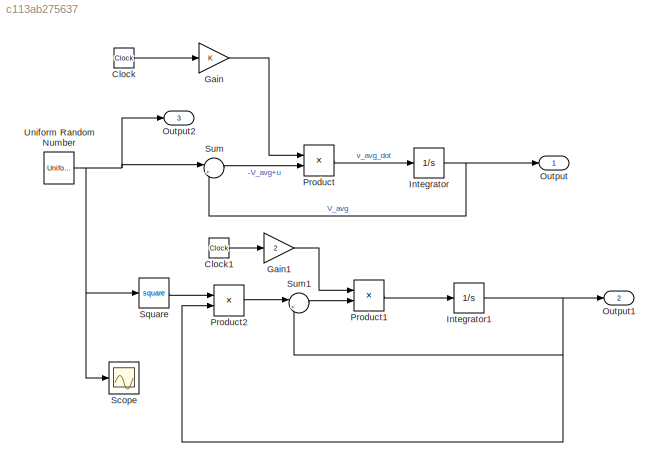
MODEL slx_c113ab275637
KIND model
CONFIG AbsTol = auto
CONFIG EnableMultiTasking = off
CONFIG FixedStep = 0.1
CONFIG MaxStep = auto
CONFIG MinStep = auto
CONFIG RelTol = 1e-3
CONFIG SampleTimeConstraint = Unconstrained
CONFIG SolverName = ode45
CONFIG StartTime = 1
CONFIG StopTime = 100
BLOCK [Clock] Clock
BLOCK [Clock] Clock1
BLOCK [Gain] Gain
BLOCK [Gain] Gain1
  Gain = 2
BLOCK [Integrator] Integrator
  InitialCondition = 0.0001
  Ports = [1, 1]
BLOCK [Integrator] Integrator1
  InitialCondition = 0.0001
  Ports = [1, 1]
BLOCK [Outport] Output
BLOCK [Outport] Output1
  Port = 2
BLOCK [Outport] Output2
  Port = 3
BLOCK [Product] Product
  Inputs = /*
  Ports = [2, 1]
BLOCK [Product] Product1
  Inputs = /*
  Ports = [2, 1]
BLOCK [Product] Product2
  Inputs = */
  Ports = [2, 1]
BLOCK [Scope] Scope
  Floating = off
  NumInputPorts = 1
  Ports = [1]
  ScopeSpecificationString = Simulink.scopes.TimeScopeBlockCfg('CurrentConfiguration', extmgr.ConfigurationSet(extmgr.Configuration('Core','General UI',true),extmgr.Configuration('Core','Source UI',true),extmgr.Configuration('Sources','WiredSimulink',true),extmgr.Configuration('Visuals','Time Domain',true,'SerializedDisplays',{struct('MinYLimReal','-2.16365','MaxYLimReal','2.16232','YLabelReal','','MinYLimMag','0.00000','MaxY...<+1341ch>
BLOCK [Math] Square
  Operator = square
  Ports = [1, 1]
BLOCK [Sum] Sum
  Inputs = |+-
  Ports = [2, 1]
BLOCK [Sum] Sum1
  Inputs = |+-
  Ports = [2, 1]
BLOCK [UniformRandomNumber] Uniform Random Number
  Maximum = nmax
  Minimum = nmin
  SampleTime = 1
  Seed = seed
LINE Clock1:1 -> Gain1:1
LINE Clock:1 -> Gain:1
LINE Gain1:1 -> Product1:1
LINE Gain:1 -> Product:1
NET Integrator1:1 -> Output1:1, Product2:2, Sum1:2
NET Integrator:1 -> Output:1, Sum:2
LINE Product1:1 -> Integrator1:1
LINE Product2:1 -> Sum1:1
LINE Product:1 -> Integrator:1
LINE Square:1 -> Product2:1
LINE Sum1:1 -> Product1:2
LINE Sum:1 -> Product:2
NET Uniform Random Number:1 -> Output2:1, Scope:1, Square:1, Sum:1
note: NET lines group one-source signal fan-out (src -> all destinations, sorted); 1:1 wires keep LINE
